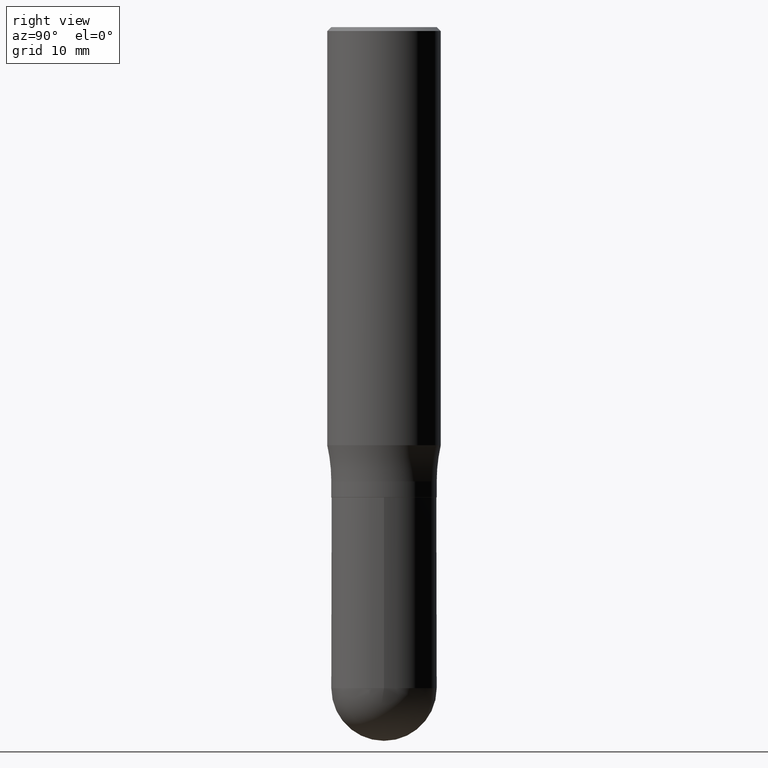
[diagram: clean part render]
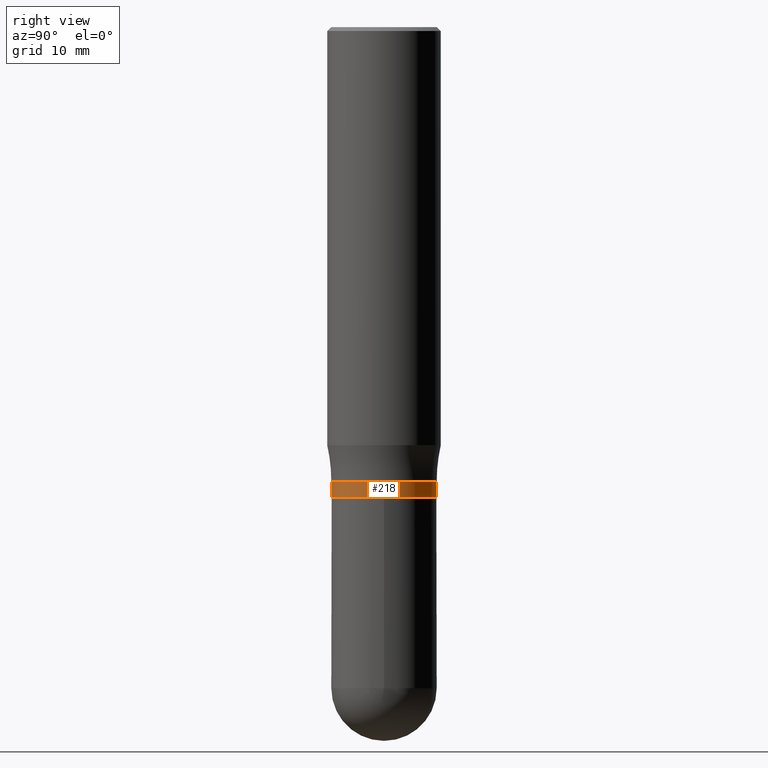
[diagram: same view with one face highlighted and labeled with its STEP entity id]
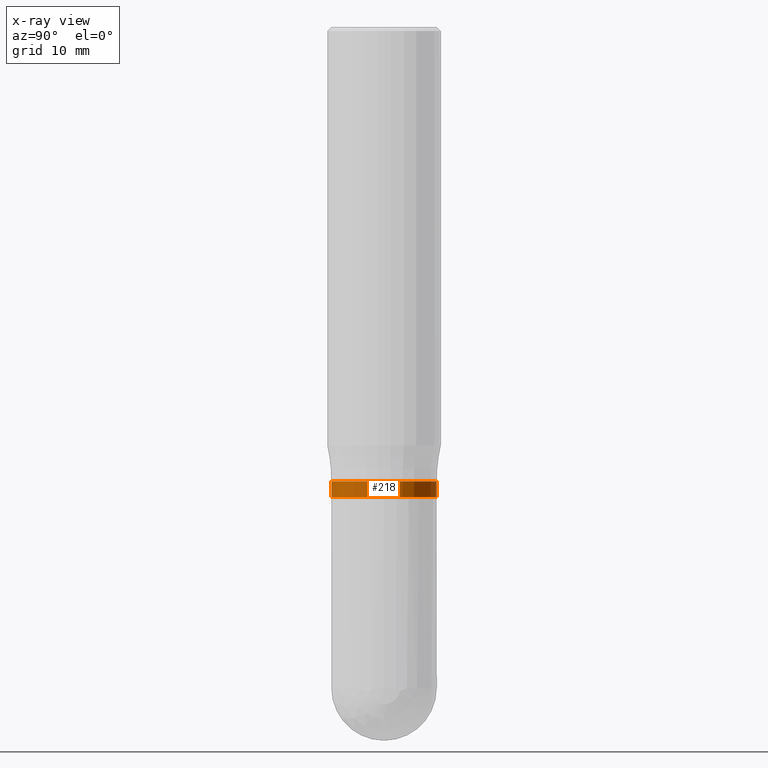
[diagram: x-ray of the same camera — body ghosted, the highlighted face saturated]
A machine part, right view. The second image highlights one B-rep face of the part: STEP entity #218.
The next image is the same camera in x-ray: the body ghosted, the highlighted face saturated — about 0% of this face is hidden behind the body in this view.
In plain terms, the highlighted cylindrical surface (partial cylindrical patch) has radius 5.1587 mm, axis along (-0, 0, 1).
Its self-contained STEP definition (entity closure, byte-faithful):
#8 = DIRECTION ( 'NONE',  ( -2.444718999452591209E-29, 3.492555104760499256E-15, 1.000000000000000000 ) ) ;
#14 = DIRECTION ( 'NONE',  ( -2.444718999452591209E-29, 3.492555104760499256E-15, 1.000000000000000000 ) ) ;
#25 = VERTEX_POINT ( 'NONE', #168 ) ;
#41 = CYLINDRICAL_SURFACE ( 'NONE', #455, 0.2031000000000002248 ) ;
#64 = VERTEX_POINT ( 'NONE', #172 ) ;
#65 = CARTESIAN_POINT ( 'NONE',  ( -1.418239719838081959E-15, -0.2031000000000002248, 7.093379417768580917E-16 ) ) ;
#66 = ORIENTED_EDGE ( 'NONE', *, *, #128, .F. ) ;
#90 = FACE_OUTER_BOUND ( 'NONE', #468, .T. ) ;
#92 = DIRECTION ( 'NONE',  ( -6.982962677686265133E-15, -1.000000000000000000, 3.492555104760498862E-15 ) ) ;
#102 = LINE ( 'NONE', #209, #167 ) ;
#113 = CARTESIAN_POINT ( 'NONE',  ( 4.428608467508369173E-29, -6.326763572273644281E-15, -1.811500000000000110 ) ) ;
#117 = CARTESIAN_POINT ( 'NONE',  ( 0.000000000000000000, 0.000000000000000000, 0.000000000000000000 ) ) ;
#128 = EDGE_CURVE ( 'NONE', #429, #64, #265, .T. ) ;
#162 = CIRCLE ( 'NONE', #239, 0.2031000000000002526 ) ;
#164 = EDGE_CURVE ( 'NONE', #429, #25, #162, .T. ) ;
#167 = VECTOR ( 'NONE', #14, 39.37007874015748143 ) ;
#168 = CARTESIAN_POINT ( 'NONE',  ( 1.443112296328808265E-15, 0.2030999999999939243, -1.811500000000000776 ) ) ;
#171 = DIRECTION ( 'NONE',  ( -2.444718999452591209E-29, 3.492555104760499256E-15, 1.000000000000000000 ) ) ;
#172 = CARTESIAN_POINT ( 'NONE',  ( -1.418239719838039360E-15, -0.2031000000000063310, -1.750000000000000000 ) ) ;
#179 = CARTESIAN_POINT ( 'NONE',  ( 4.278258249042036437E-29, -6.111971433330876361E-15, -1.750000000000000666 ) ) ;
#209 = CARTESIAN_POINT ( 'NONE',  ( 1.443112296328764878E-15, 0.2031000000000002248, -7.093379417768580917E-16 ) ) ;
#212 = DIRECTION ( 'NONE',  ( -6.982962677686265133E-15, -1.000000000000000000, 4.035225987687237941E-15 ) ) ;
#217 = CIRCLE ( 'NONE', #263, 0.2031000000000002248 ) ;
#218 = ADVANCED_FACE ( 'NONE', ( #90 ), #41, .T. ) ;
#229 = DIRECTION ( 'NONE',  ( -2.444718999452591209E-29, 3.492555104760499256E-15, 1.000000000000000000 ) ) ;
#239 = AXIS2_PLACEMENT_3D ( 'NONE', #113, #279, #503 ) ;
#263 = AXIS2_PLACEMENT_3D ( 'NONE', #179, #171, #212 ) ;
#265 = LINE ( 'NONE', #65, #446 ) ;
#279 = DIRECTION ( 'NONE',  ( -2.444718999452591209E-29, 3.492555104760499256E-15, 1.000000000000000000 ) ) ;
#296 = CARTESIAN_POINT ( 'NONE',  ( -1.418239719838037782E-15, -0.2031000000000065808, -1.811499999999999222 ) ) ;
#367 = ORIENTED_EDGE ( 'NONE', *, *, #412, .F. ) ;
#383 = CARTESIAN_POINT ( 'NONE',  ( 1.498712265402032939E-15, 0.2030999999999941186, -1.750000000000001554 ) ) ;
#406 = EDGE_CURVE ( 'NONE', #25, #504, #102, .T. ) ;
#412 = EDGE_CURVE ( 'NONE', #64, #504, #217, .T. ) ;
#426 = ORIENTED_EDGE ( 'NONE', *, *, #164, .T. ) ;
#429 = VERTEX_POINT ( 'NONE', #296 ) ;
#446 = VECTOR ( 'NONE', #229, 39.37007874015748143 ) ;
#455 = AXIS2_PLACEMENT_3D ( 'NONE', #117, #8, #92 ) ;
#468 = EDGE_LOOP ( 'NONE', ( #426, #471, #367, #66 ) ) ;
#471 = ORIENTED_EDGE ( 'NONE', *, *, #406, .T. ) ;
#503 = DIRECTION ( 'NONE',  ( -6.982962677686265922E-15, -1.000000000000000000, 4.035225987687237941E-15 ) ) ;
#504 = VERTEX_POINT ( 'NONE', #383 ) ;